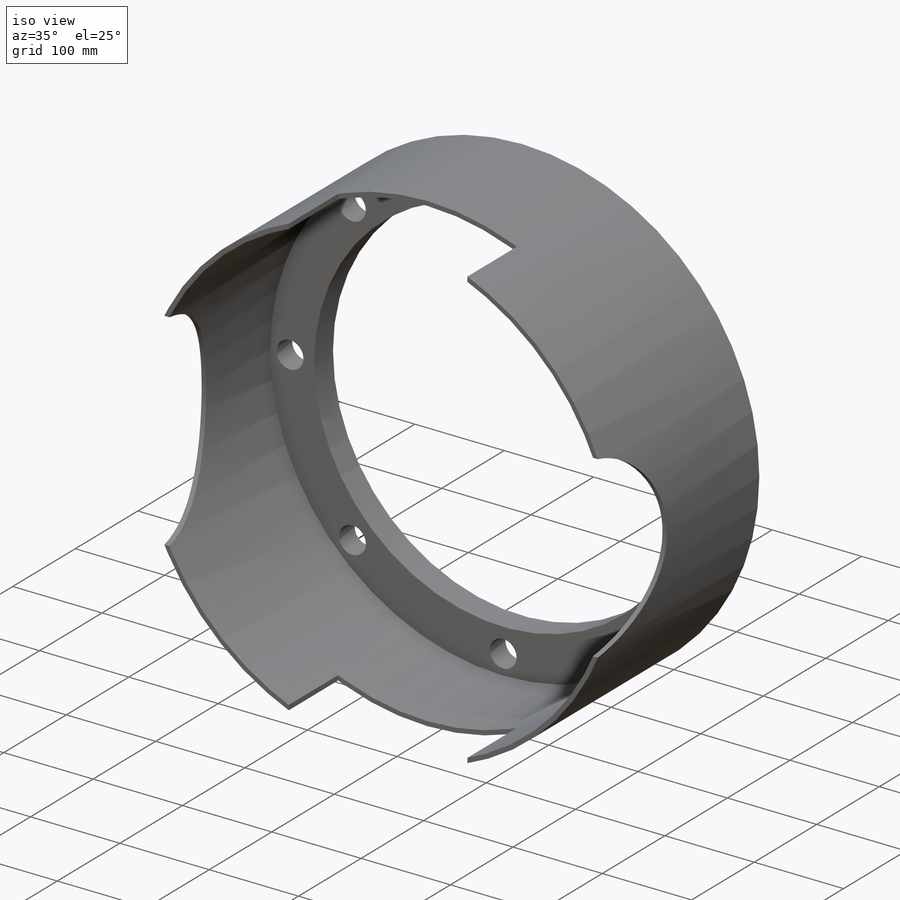
[diagram: iso view]
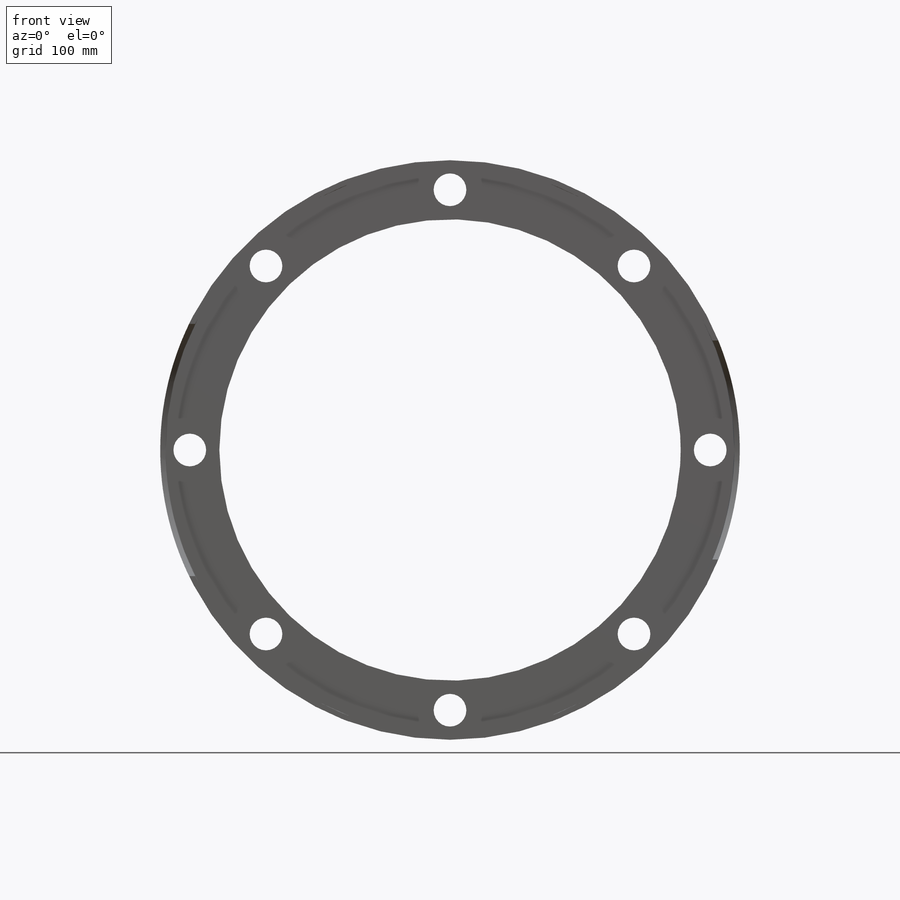
[diagram: front view]
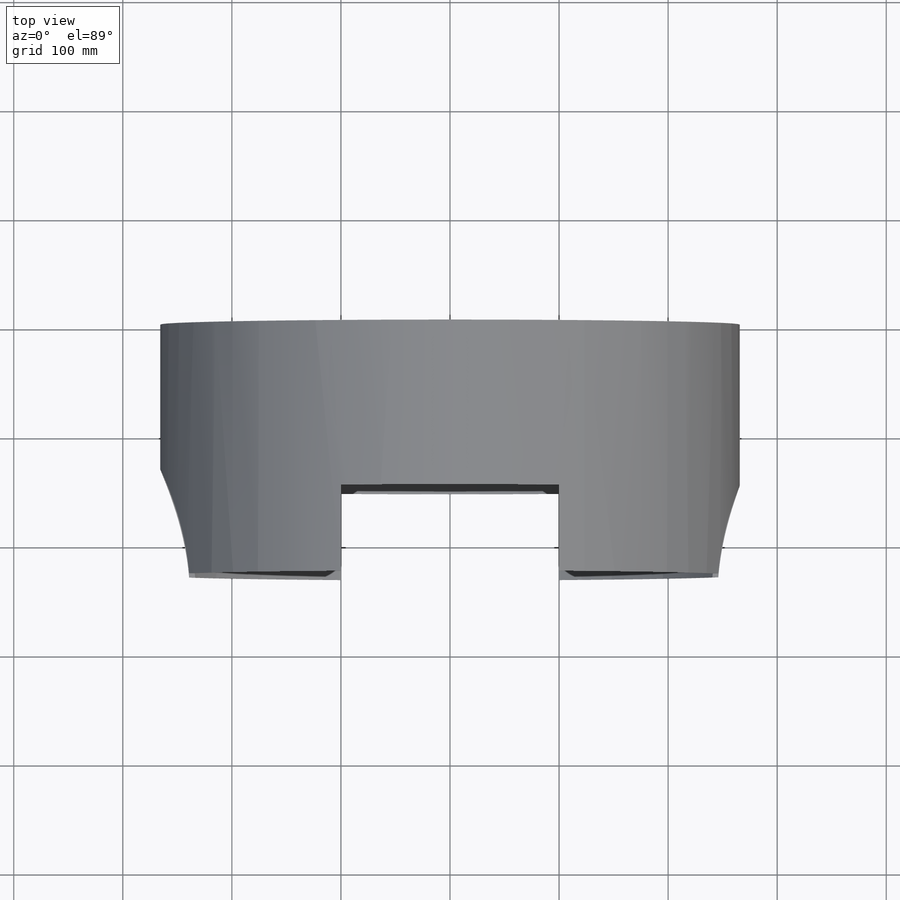
[diagram: top view]
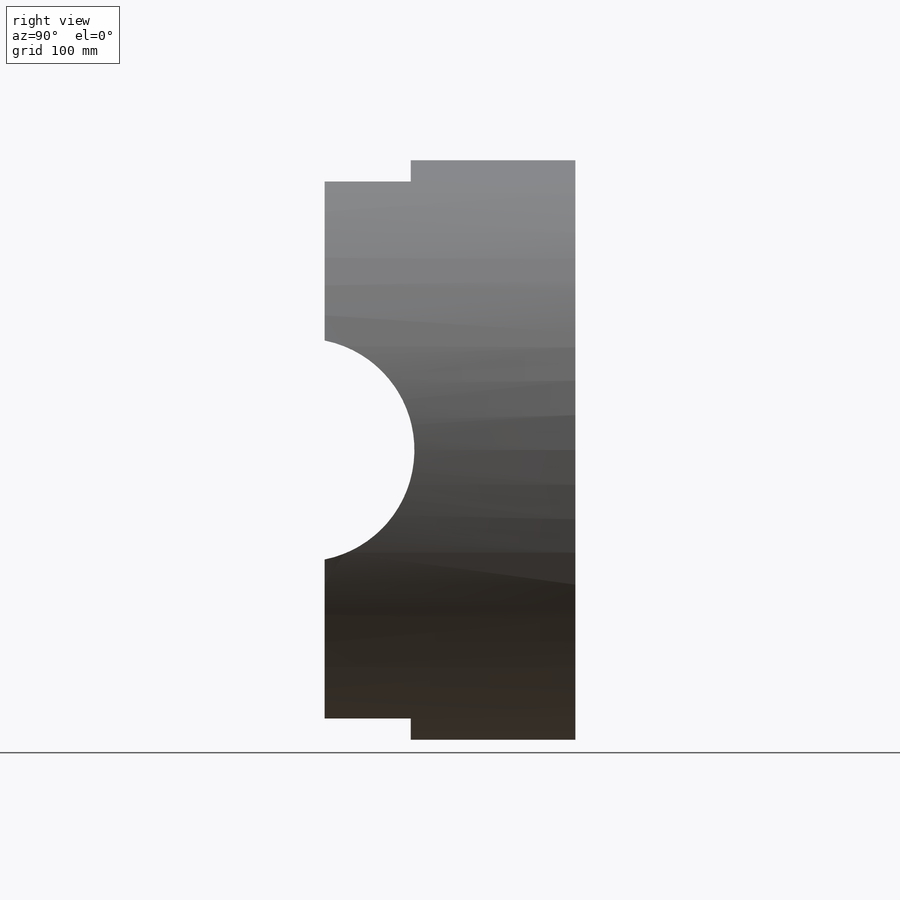
[diagram: right view]
SOLIDWORKS PART (.sldprt)
format: sldprt  version: not decoded by parser v0  size: 280,576 bytes
history: native  units: mm
features: sketch x6, extrude x3, cut_extrude x3, material x1 (+16 scaffold rows collapsed)
feature tree (29):
  scaffold x16  (default folders/planes/origin — collapsed)
  material  "6063-T4"
  sketch  "Sketch1"  dims[c1.D1=~10.62784mm c2.D1=112.5deg]
  extrude  "Extrude1"  Depth=5mm
  sketch  "Sketch2"  dims[D1=~13.819648mm]
  extrude  "Extrude2"  Depth=25mm
  sketch  "Sketch3"  dims[D1=250.7mm]
  extrude  "Extrude3"  Depth=200mm
  sketch  "Sketch4"  dims[D2=~113.559202mm D1=250.0mm]
  cut_extrude  "Extrude4"  [1 undecoded]
  sketch  "Sketch5"  dims[D1=114.3mm]
  cut_extrude  "Extrude5"  [1 undecoded]
  sketch  "Sketch6"  dims[c1.D1=~78.989545mm c1.D2=40.0mm c2.D1=40.0mm c2.D2=~68.837284mm c2.cut1=100.0mm c3.D2=100.0mm c3.cut2=79.0mm]
  cut_extrude  "Extrude6"  [1 undecoded]
decode coverage: 9 of 12 modeling features carry decoded parameters
note: ~ marks probable driven/reference dimensions
note: 3 parameter values undecoded
summary: no parameter record found for 3 features
note: suppression state not decoded; provenance and decode notes live in map.json
